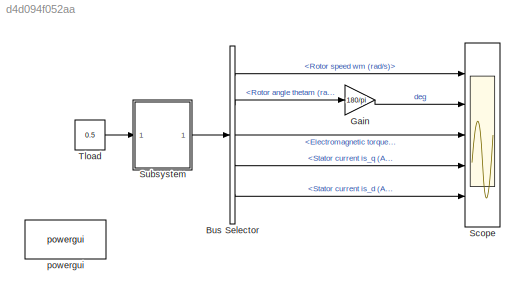
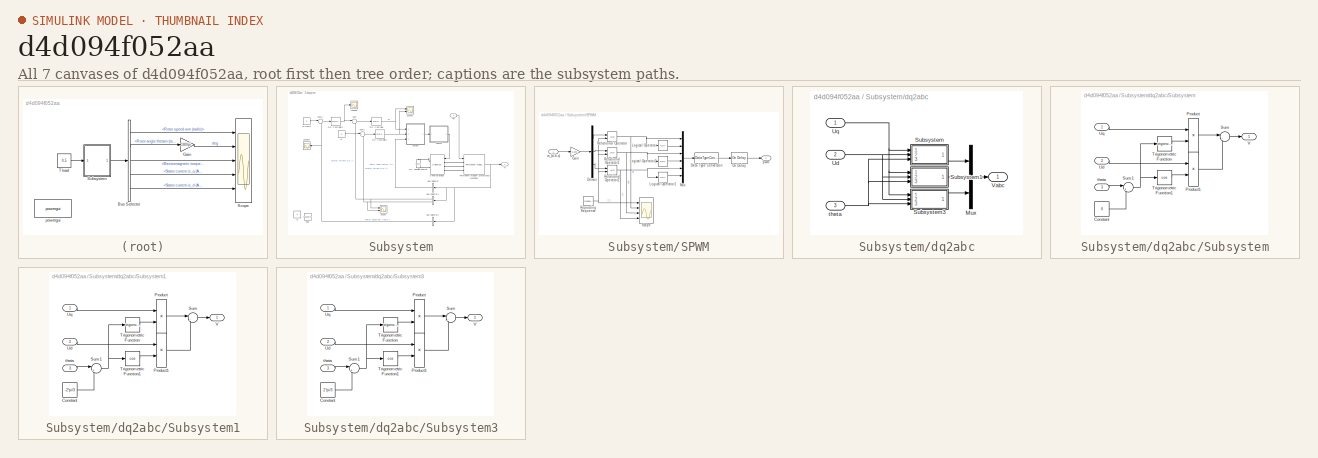
[diagram: thumbnail index - all 7 canvases of the model, root first then tree order]
MODEL slx_d4d094f052aa
KIND model
CONFIG AbsTol = auto
CONFIG EnableMultiTasking = off
CONFIG FixedStep = auto
CONFIG MaxStep = auto
CONFIG MinStep = auto
CONFIG RelTol = 1e-3
CONFIG SampleTimeConstraint = Unconstrained
CONFIG Solver = VariableStepAuto
CONFIG SolverName = VariableStepAuto
CONFIG StartTime = 0.0
CONFIG StopTime = 0.2
BLOCK [BusSelector] Bus Selector
  OutputAsBus = off
  OutputSignals = Rotor speed wm (rad/s),Rotor angle thetam (rad),Electromagnetic torque Te (N*m),Stator current is_q (A),Stator current is_d (A)
  Ports = [1, 5]
BLOCK [Gain] Gain
  Gain = 180/pi
  OutDataTypeStr = Inherit: Inherit via internal rule
  ParamDataTypeStr = Inherit: Inherit via internal rule
  SaturateOnIntegerOverflow = off
BLOCK [Scope] Scope
  Floating = off
  NumInputPorts = 5
  Ports = [5]
  ScopeSpecificationString = Simulink.scopes.TimeScopeBlockCfg('CurrentConfiguration', extmgr.ConfigurationSet(extmgr.Configuration('Core','General UI',true),extmgr.Configuration('Core','Source UI',true),extmgr.Configuration('Sources','WiredSimulink',true,'DataLoggingVariableName','ScopeData1'),extmgr.Configuration('Visuals','Time Domain',true,'SerializedDisplays',{struct('MinYLimReal','-0.64229','MaxYLimReal','5.78062','YLab...<+4273ch>
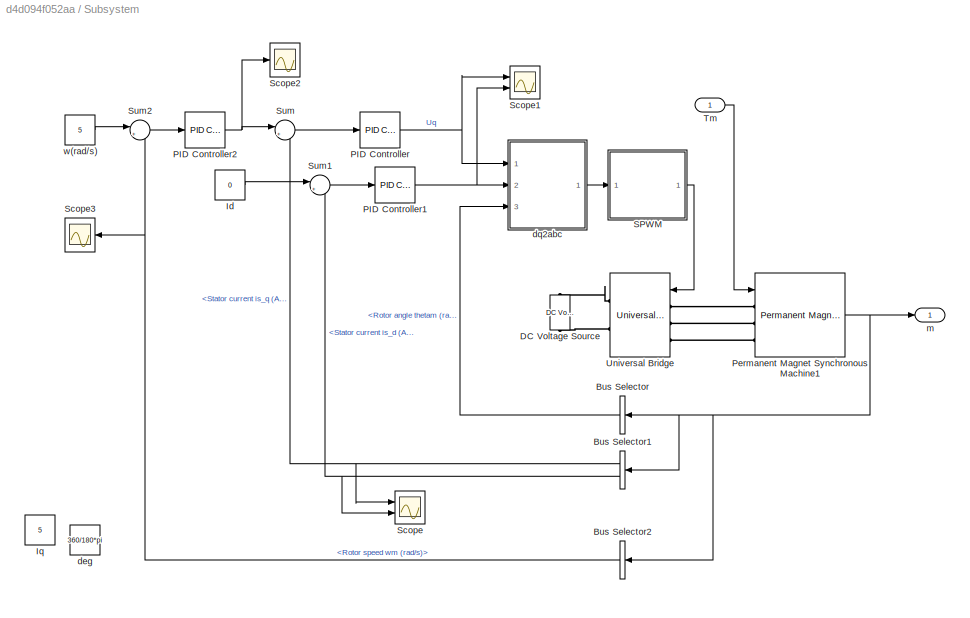
BLOCK [SubSystem] Subsystem
  Ports = [1, 1]
  RequestExecContextInheritance = off
BLOCK [BusSelector] Subsystem/Bus Selector
  OutputAsBus = off
  OutputSignals = Rotor angle thetam (rad)
  Ports = [1, 1]
BLOCK [BusSelector] Subsystem/Bus Selector1
  OutputAsBus = off
  OutputSignals = Stator current is_q (A),Stator current is_d (A)
  Ports = [1, 2]
BLOCK [BusSelector] Subsystem/Bus Selector2
  OutputAsBus = off
  OutputSignals = Rotor speed wm (rad/s)
  Ports = [1, 1]
BLOCK [Reference] Subsystem/DC Voltage Source  REF=powerlib/Electrical
Sources/DC Voltage Source
  Ports = [0, 0, 0, 0, 0, 1, 1]
  SourceBlock = powerlib/Electrical\nSources/DC Voltage Source
  SourceProductBaseCode = PS
  SourceProductName = Simscape Power Systems
  SourceType = DC Voltage Source
BLOCK [Constant] Subsystem/Id
  Value = 0
BLOCK [Constant] Subsystem/Iq
  Value = 5
BLOCK [Reference] Subsystem/PID Controller  REF=simulink/Continuous/PID Controller
  Ports = [1, 1]
  SourceBlock = simulink/Continuous/PID Controller
  SourceProductBaseCode = SL
  SourceProductName = Simulink
  SourceType = PID 1dof
BLOCK [Reference] Subsystem/PID Controller1  REF=simulink/Continuous/PID Controller
  Ports = [1, 1]
  SourceBlock = simulink/Continuous/PID Controller
  SourceProductBaseCode = SL
  SourceProductName = Simulink
  SourceType = PID 1dof
BLOCK [Reference] Subsystem/PID Controller2  REF=simulink/Continuous/PID Controller
  Ports = [1, 1]
  SourceBlock = simulink/Continuous/PID Controller
  SourceProductBaseCode = SL
  SourceProductName = Simulink
  SourceType = PID 1dof
BLOCK [Reference] Subsystem/Permanent Magnet Synchronous Machine1  REF=powerlib/Machines/Permanent Magnet
Synchronous Machine
  Ports = [1, 1, 0, 0, 0, 3]
  SourceBlock = powerlib/Machines/Permanent Magnet\nSynchronous Machine
  SourceProductBaseCode = PS
  SourceProductName = Simscape Power Systems
  SourceType = Permanent Magnet Synchronous Machine
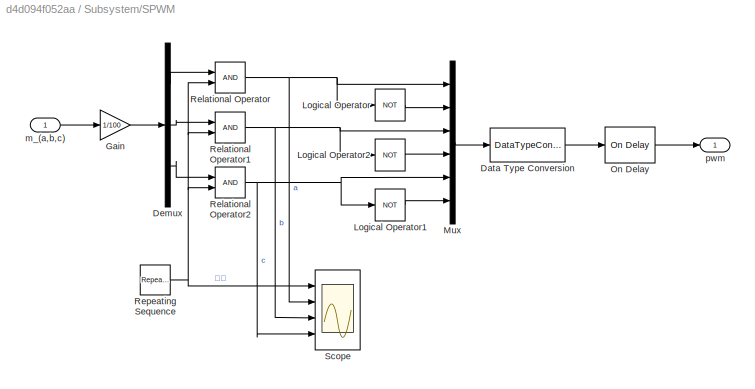
BLOCK [SubSystem] Subsystem/SPWM
  Ports = [1, 1]
  RequestExecContextInheritance = off
BLOCK [DataTypeConversion] Subsystem/SPWM/Data Type Conversion
  RndMeth = Floor
  SaturateOnIntegerOverflow = off
BLOCK [Demux] Subsystem/SPWM/Demux
  DisplayOption = bar
  Outputs = 3
  Ports = [1, 3]
BLOCK [Gain] Subsystem/SPWM/Gain
  Gain = 1/100
  OutDataTypeStr = Inherit: Inherit via internal rule
  ParamDataTypeStr = Inherit: Inherit via internal rule
  SaturateOnIntegerOverflow = off
BLOCK [Logic] Subsystem/SPWM/Logical Operator
  AllPortsSameDT = off
  Operator = NOT
  OutDataTypeStr = boolean
  Ports = [1, 1]
BLOCK [Logic] Subsystem/SPWM/Logical Operator1
  AllPortsSameDT = off
  Operator = NOT
  OutDataTypeStr = boolean
  Ports = [1, 1]
BLOCK [Logic] Subsystem/SPWM/Logical Operator2
  AllPortsSameDT = off
  Operator = NOT
  OutDataTypeStr = boolean
  Ports = [1, 1]
BLOCK [Mux] Subsystem/SPWM/Mux
  DisplayOption = bar
  Inputs = 6
  Ports = [6, 1]
BLOCK [Reference] Subsystem/SPWM/On Delay  REF=powerlib_meascontrol/Logic/On Delay
  Ports = [1, 1]
  SourceBlock = powerlib_meascontrol/Logic/On Delay
  SourceProductBaseCode = PS
  SourceProductName = Simscape Power Systems
  SourceType = On/Off Delay
BLOCK [RelationalOperator] Subsystem/SPWM/Relational Operator
  InputSameDT = off
  OutDataTypeStr = boolean
  Ports = [2, 1]
  RndMeth = Simplest
BLOCK [RelationalOperator] Subsystem/SPWM/Relational Operator1
  InputSameDT = off
  OutDataTypeStr = boolean
  Ports = [2, 1]
  RndMeth = Simplest
BLOCK [RelationalOperator] Subsystem/SPWM/Relational Operator2
  InputSameDT = off
  OutDataTypeStr = boolean
  Ports = [2, 1]
  RndMeth = Simplest
BLOCK [Reference] Subsystem/SPWM/Repeating Sequence  REF=simulink/Sources/Repeating
Sequence
  Ports = [0, 1]
  SourceBlock = simulink/Sources/Repeating\nSequence
  SourceProductBaseCode = SL
  SourceProductName = Simulink
  SourceType = Repeating table
BLOCK [Scope] Subsystem/SPWM/Scope
  Floating = off
  NumInputPorts = 4
  Ports = [4]
  ScopeSpecificationString = Simulink.scopes.TimeScopeBlockCfg('CurrentConfiguration', extmgr.ConfigurationSet(extmgr.Configuration('Core','General UI',true),extmgr.Configuration('Core','Source UI',true),extmgr.Configuration('Sources','WiredSimulink',true,'DataLoggingVariableName','ScopeData1'),extmgr.Configuration('Visuals','Time Domain',true,'SerializedDisplays',{struct('MinYLimReal','0.5','MaxYLimReal','2','YLabelReal','',...<+2700ch>
BLOCK [Inport] Subsystem/SPWM/m_(a,b,c) 
  IconDisplay = Port number
BLOCK [Outport] Subsystem/SPWM/pwm
  IconDisplay = Port number
BLOCK [Scope] Subsystem/Scope
  Floating = off
  NumInputPorts = 2
  Ports = [2]
  ScopeSpecificationString = Simulink.scopes.TimeScopeBlockCfg('CurrentConfiguration', extmgr.ConfigurationSet(extmgr.Configuration('Core','General UI',true),extmgr.Configuration('Core','Source UI',true),extmgr.Configuration('Sources','WiredSimulink',true,'DataLoggingVariableName','ScopeData1'),extmgr.Configuration('Visuals','Time Domain',true,'SerializedDisplays',{struct('MinYLimReal','-9.73687','MaxYLimReal','87.63184','YLa...<+2005ch>
BLOCK [Scope] Subsystem/Scope1
  Floating = off
  NumInputPorts = 2
  Ports = [2]
  ScopeSpecificationString = Simulink.scopes.TimeScopeBlockCfg('CurrentConfiguration', extmgr.ConfigurationSet(extmgr.Configuration('Core','General UI',true),extmgr.Configuration('Core','Source UI',true),extmgr.Configuration('Sources','WiredSimulink',true,'DataLoggingVariableName','ScopeData2'),extmgr.Configuration('Visuals','Time Domain',true,'SerializedDisplays',{struct('MinYLimReal','-56.27312','MaxYLimReal','117.36368','Y...<+2023ch>
BLOCK [Scope] Subsystem/Scope2
  Floating = off
  NumInputPorts = 1
  Ports = [1]
  ScopeSpecificationString = Simulink.scopes.TimeScopeBlockCfg('CurrentConfiguration', extmgr.ConfigurationSet(extmgr.Configuration('Core','General UI',true),extmgr.Configuration('Core','Source UI',true),extmgr.Configuration('Sources','WiredSimulink',true,'DataLoggingVariableName','ScopeData2'),extmgr.Configuration('Visuals','Time Domain',true,'SerializedDisplays',{struct('MinYLimReal','-12.83015','MaxYLimReal','112.53668','Y...<+1507ch>
BLOCK [Scope] Subsystem/Scope3
  Floating = off
  NumInputPorts = 1
  Ports = [1]
  ScopeSpecificationString = Simulink.scopes.TimeScopeBlockCfg('CurrentConfiguration', extmgr.ConfigurationSet(extmgr.Configuration('Core','General UI',true),extmgr.Configuration('Core','Source UI',true),extmgr.Configuration('Sources','WiredSimulink',true,'DataLoggingVariableName','ScopeData3'),extmgr.Configuration('Visuals','Time Domain',true,'SerializedDisplays',{struct('MinYLimReal','-0.62983','MaxYLimReal','5.64145','YLab...<+1462ch>
BLOCK [Sum] Subsystem/Sum
  IconShape = round
  InputSameDT = off
  Inputs = |+-
  OutDataTypeStr = Inherit: Inherit via internal rule
  Ports = [2, 1]
  SaturateOnIntegerOverflow = off
BLOCK [Sum] Subsystem/Sum1
  IconShape = round
  InputSameDT = off
  Inputs = |+-
  OutDataTypeStr = Inherit: Inherit via internal rule
  Ports = [2, 1]
  SaturateOnIntegerOverflow = off
BLOCK [Sum] Subsystem/Sum2
  IconShape = round
  InputSameDT = off
  Inputs = |+-
  OutDataTypeStr = Inherit: Inherit via internal rule
  Ports = [2, 1]
  SaturateOnIntegerOverflow = off
BLOCK [Inport] Subsystem/Tm
  IconDisplay = Port number
BLOCK [Reference] Subsystem/Universal Bridge  REF=powerlib/Power
Electronics/Universal Bridge
  Ports = [1, 0, 0, 0, 0, 3, 2]
  SourceBlock = powerlib/Power\nElectronics/Universal Bridge
  SourceProductBaseCode = PS
  SourceProductName = Simscape Power Systems
  SourceType = Universal Bridge
BLOCK [Constant] Subsystem/deg
  Value = 360/180*pi
BLOCK [SubSystem] Subsystem/dq2abc
  Ports = [3, 1]
  RequestExecContextInheritance = off
BLOCK [Mux] Subsystem/dq2abc/Mux
  DisplayOption = bar
  Inputs = 3
  Ports = [3, 1]
BLOCK [SubSystem] Subsystem/dq2abc/Subsystem
  Ports = [3, 1]
  RequestExecContextInheritance = off
BLOCK [Constant] Subsystem/dq2abc/Subsystem/Constant
  Value = 0
BLOCK [Product] Subsystem/dq2abc/Subsystem/Product
  InputSameDT = off
  OutDataTypeStr = Inherit: Inherit via internal rule
  Ports = [2, 1]
  RndMeth = Floor
  SaturateOnIntegerOverflow = off
BLOCK [Product] Subsystem/dq2abc/Subsystem/Product1
  InputSameDT = off
  OutDataTypeStr = Inherit: Inherit via internal rule
  Ports = [2, 1]
  RndMeth = Floor
  SaturateOnIntegerOverflow = off
BLOCK [Sum] Subsystem/dq2abc/Subsystem/Sum
  IconShape = round
  InputSameDT = off
  Inputs = |-+
  OutDataTypeStr = Inherit: Inherit via internal rule
  Ports = [2, 1]
  SaturateOnIntegerOverflow = off
BLOCK [Sum] Subsystem/dq2abc/Subsystem/Sum1
  IconShape = round
  InputSameDT = off
  Inputs = |++
  OutDataTypeStr = Inherit: Inherit via internal rule
  Ports = [2, 1]
  SaturateOnIntegerOverflow = off
BLOCK [Trigonometry] Subsystem/dq2abc/Subsystem/Trigonometric Function
  Ports = [1, 1]
BLOCK [Trigonometry] Subsystem/dq2abc/Subsystem/Trigonometric Function1
  Operator = cos
  Ports = [1, 1]
BLOCK [Inport] Subsystem/dq2abc/Subsystem/Ud
  IconDisplay = Port number
  Port = 2
BLOCK [Inport] Subsystem/dq2abc/Subsystem/Uq
  IconDisplay = Port number
BLOCK [Outport] Subsystem/dq2abc/Subsystem/V
  IconDisplay = Port number
BLOCK [Inport] Subsystem/dq2abc/Subsystem/theta
  IconDisplay = Port number
  Port = 3
BLOCK [SubSystem] Subsystem/dq2abc/Subsystem1
  Ports = [3, 1]
  RequestExecContextInheritance = off
BLOCK [Constant] Subsystem/dq2abc/Subsystem1/Constant
  Value = -2*pi/3
BLOCK [Product] Subsystem/dq2abc/Subsystem1/Product
  InputSameDT = off
  OutDataTypeStr = Inherit: Inherit via internal rule
  Ports = [2, 1]
  RndMeth = Floor
  SaturateOnIntegerOverflow = off
BLOCK [Product] Subsystem/dq2abc/Subsystem1/Product1
  InputSameDT = off
  OutDataTypeStr = Inherit: Inherit via internal rule
  Ports = [2, 1]
  RndMeth = Floor
  SaturateOnIntegerOverflow = off
BLOCK [Sum] Subsystem/dq2abc/Subsystem1/Sum
  IconShape = round
  InputSameDT = off
  Inputs = |-+
  OutDataTypeStr = Inherit: Inherit via internal rule
  Ports = [2, 1]
  SaturateOnIntegerOverflow = off
BLOCK [Sum] Subsystem/dq2abc/Subsystem1/Sum1
  IconShape = round
  InputSameDT = off
  Inputs = |++
  OutDataTypeStr = Inherit: Inherit via internal rule
  Ports = [2, 1]
  SaturateOnIntegerOverflow = off
BLOCK [Trigonometry] Subsystem/dq2abc/Subsystem1/Trigonometric Function
  Ports = [1, 1]
BLOCK [Trigonometry] Subsystem/dq2abc/Subsystem1/Trigonometric Function1
  Operator = cos
  Ports = [1, 1]
BLOCK [Inport] Subsystem/dq2abc/Subsystem1/Ud
  IconDisplay = Port number
  Port = 2
BLOCK [Inport] Subsystem/dq2abc/Subsystem1/Uq
  IconDisplay = Port number
BLOCK [Outport] Subsystem/dq2abc/Subsystem1/V
  IconDisplay = Port number
BLOCK [Inport] Subsystem/dq2abc/Subsystem1/theta
  IconDisplay = Port number
  Port = 3
BLOCK [SubSystem] Subsystem/dq2abc/Subsystem3
  Ports = [3, 1]
  RequestExecContextInheritance = off
BLOCK [Constant] Subsystem/dq2abc/Subsystem3/Constant
  Value = 2*pi/3
BLOCK [Product] Subsystem/dq2abc/Subsystem3/Product
  InputSameDT = off
  OutDataTypeStr = Inherit: Inherit via internal rule
  Ports = [2, 1]
  RndMeth = Floor
  SaturateOnIntegerOverflow = off
BLOCK [Product] Subsystem/dq2abc/Subsystem3/Product1
  InputSameDT = off
  OutDataTypeStr = Inherit: Inherit via internal rule
  Ports = [2, 1]
  RndMeth = Floor
  SaturateOnIntegerOverflow = off
BLOCK [Sum] Subsystem/dq2abc/Subsystem3/Sum
  IconShape = round
  InputSameDT = off
  Inputs = |-+
  OutDataTypeStr = Inherit: Inherit via internal rule
  Ports = [2, 1]
  SaturateOnIntegerOverflow = off
BLOCK [Sum] Subsystem/dq2abc/Subsystem3/Sum1
  IconShape = round
  InputSameDT = off
  Inputs = |++
  OutDataTypeStr = Inherit: Inherit via internal rule
  Ports = [2, 1]
  SaturateOnIntegerOverflow = off
BLOCK [Trigonometry] Subsystem/dq2abc/Subsystem3/Trigonometric Function
  Ports = [1, 1]
BLOCK [Trigonometry] Subsystem/dq2abc/Subsystem3/Trigonometric Function1
  Operator = cos
  Ports = [1, 1]
BLOCK [Inport] Subsystem/dq2abc/Subsystem3/Ud
  IconDisplay = Port number
  Port = 2
BLOCK [Inport] Subsystem/dq2abc/Subsystem3/Uq
  IconDisplay = Port number
BLOCK [Outport] Subsystem/dq2abc/Subsystem3/V
  IconDisplay = Port number
BLOCK [Inport] Subsystem/dq2abc/Subsystem3/theta
  IconDisplay = Port number
  Port = 3
BLOCK [Inport] Subsystem/dq2abc/Ud
  IconDisplay = Port number
  Port = 2
BLOCK [Inport] Subsystem/dq2abc/Uq
  IconDisplay = Port number
BLOCK [Outport] Subsystem/dq2abc/Vabc
  IconDisplay = Port number
BLOCK [Inport] Subsystem/dq2abc/theta
  IconDisplay = Port number
  Port = 3
BLOCK [Outport] Subsystem/m
  IconDisplay = Port number
BLOCK [Constant] Subsystem/w(rad//s)
  Value = 5
BLOCK [Constant] Tload
  Value = 0.5
BLOCK [Reference] powergui  REF=powerlib/powergui
  Ports = []
  Priority = 1
  SourceBlock = powerlib/powergui
  SourceProductBaseCode = PS
  SourceProductName = Simscape Power Systems
  SourceType = PSB option menu block
LINE Bus Selector:1 -> Scope:1
LINE Bus Selector:2 -> Gain:1
LINE Bus Selector:3 -> Scope:3
LINE Bus Selector:4 -> Scope:4
LINE Bus Selector:5 -> Scope:5
LINE Gain:1 -> Scope:2
NET Subsystem/Bus Selector1:1 -> Subsystem/Scope:1, Subsystem/Sum:2
NET Subsystem/Bus Selector1:2 -> Subsystem/Scope:2, Subsystem/Sum1:2
NET Subsystem/Bus Selector2:1 -> Subsystem/Scope3:1, Subsystem/Sum2:2
LINE Subsystem/Bus Selector:1 -> Subsystem/dq2abc:3
LINE Subsystem/Id:1 -> Subsystem/Sum1:1
NET Subsystem/PID Controller1:1 -> Subsystem/Scope1:2, Subsystem/dq2abc:2
NET Subsystem/PID Controller2:1 -> Subsystem/Scope2:1, Subsystem/Sum:1
NET Subsystem/PID Controller:1 -> Subsystem/Scope1:1, Subsystem/dq2abc:1
NET Subsystem/Permanent Magnet Synchronous Machine1:1 -> Subsystem/Bus Selector1:1, Subsystem/Bus Selector2:1, Subsystem/Bus Selector:1, Subsystem/m:1
LINE Subsystem/SPWM/Data Type Conversion:1 -> Subsystem/SPWM/On Delay:1
LINE Subsystem/SPWM/Demux:1 -> Subsystem/SPWM/Relational Operator:1
LINE Subsystem/SPWM/Demux:2 -> Subsystem/SPWM/Relational Operator1:1
LINE Subsystem/SPWM/Demux:3 -> Subsystem/SPWM/Relational Operator2:1
LINE Subsystem/SPWM/Gain:1 -> Subsystem/SPWM/Demux:1
LINE Subsystem/SPWM/Logical Operator1:1 -> Subsystem/SPWM/Mux:6
LINE Subsystem/SPWM/Logical Operator2:1 -> Subsystem/SPWM/Mux:4
LINE Subsystem/SPWM/Logical Operator:1 -> Subsystem/SPWM/Mux:2
LINE Subsystem/SPWM/Mux:1 -> Subsystem/SPWM/Data Type Conversion:1
LINE Subsystem/SPWM/On Delay:1 -> Subsystem/SPWM/pwm:1
NET Subsystem/SPWM/Relational Operator1:1 -> Subsystem/SPWM/Logical Operator2:1, Subsystem/SPWM/Mux:3, Subsystem/SPWM/Scope:3
NET Subsystem/SPWM/Relational Operator2:1 -> Subsystem/SPWM/Logical Operator1:1, Subsystem/SPWM/Mux:5, Subsystem/SPWM/Scope:4
NET Subsystem/SPWM/Relational Operator:1 -> Subsystem/SPWM/Logical Operator:1, Subsystem/SPWM/Mux:1, Subsystem/SPWM/Scope:2
NET Subsystem/SPWM/Repeating Sequence:1 -> Subsystem/SPWM/Relational Operator1:2, Subsystem/SPWM/Relational Operator2:2, Subsystem/SPWM/Relational Operator:2, Subsystem/SPWM/Scope:1
LINE Subsystem/SPWM/m_(a,b,c) :1 -> Subsystem/SPWM/Gain:1
LINE Subsystem/SPWM:1 -> Subsystem/Universal Bridge:1
LINE Subsystem/Sum1:1 -> Subsystem/PID Controller1:1
LINE Subsystem/Sum2:1 -> Subsystem/PID Controller2:1
LINE Subsystem/Sum:1 -> Subsystem/PID Controller:1
LINE Subsystem/Tm:1 -> Subsystem/Permanent Magnet Synchronous Machine1:1
LINE Subsystem/dq2abc/Mux:1 -> Subsystem/dq2abc/Vabc:1
LINE Subsystem/dq2abc/Subsystem/Constant:1 -> Subsystem/dq2abc/Subsystem/Sum1:2
LINE Subsystem/dq2abc/Subsystem/Product1:1 -> Subsystem/dq2abc/Subsystem/Sum:2
LINE Subsystem/dq2abc/Subsystem/Product:1 -> Subsystem/dq2abc/Subsystem/Sum:1
NET Subsystem/dq2abc/Subsystem/Sum1:1 -> Subsystem/dq2abc/Subsystem/Trigonometric Function1:1, Subsystem/dq2abc/Subsystem/Trigonometric Function:1
LINE Subsystem/dq2abc/Subsystem/Sum:1 -> Subsystem/dq2abc/Subsystem/V:1
LINE Subsystem/dq2abc/Subsystem/Trigonometric Function1:1 -> Subsystem/dq2abc/Subsystem/Product1:2
LINE Subsystem/dq2abc/Subsystem/Trigonometric Function:1 -> Subsystem/dq2abc/Subsystem/Product:2
LINE Subsystem/dq2abc/Subsystem/Ud:1 -> Subsystem/dq2abc/Subsystem/Product1:1
LINE Subsystem/dq2abc/Subsystem/Uq:1 -> Subsystem/dq2abc/Subsystem/Product:1
LINE Subsystem/dq2abc/Subsystem/theta:1 -> Subsystem/dq2abc/Subsystem/Sum1:1
LINE Subsystem/dq2abc/Subsystem1/Constant:1 -> Subsystem/dq2abc/Subsystem1/Sum1:2
LINE Subsystem/dq2abc/Subsystem1/Product1:1 -> Subsystem/dq2abc/Subsystem1/Sum:2
LINE Subsystem/dq2abc/Subsystem1/Product:1 -> Subsystem/dq2abc/Subsystem1/Sum:1
NET Subsystem/dq2abc/Subsystem1/Sum1:1 -> Subsystem/dq2abc/Subsystem1/Trigonometric Function1:1, Subsystem/dq2abc/Subsystem1/Trigonometric Function:1
LINE Subsystem/dq2abc/Subsystem1/Sum:1 -> Subsystem/dq2abc/Subsystem1/V:1
LINE Subsystem/dq2abc/Subsystem1/Trigonometric Function1:1 -> Subsystem/dq2abc/Subsystem1/Product1:2
LINE Subsystem/dq2abc/Subsystem1/Trigonometric Function:1 -> Subsystem/dq2abc/Subsystem1/Product:2
LINE Subsystem/dq2abc/Subsystem1/Ud:1 -> Subsystem/dq2abc/Subsystem1/Product1:1
LINE Subsystem/dq2abc/Subsystem1/Uq:1 -> Subsystem/dq2abc/Subsystem1/Product:1
LINE Subsystem/dq2abc/Subsystem1/theta:1 -> Subsystem/dq2abc/Subsystem1/Sum1:1
LINE Subsystem/dq2abc/Subsystem1:1 -> Subsystem/dq2abc/Mux:2
LINE Subsystem/dq2abc/Subsystem3/Constant:1 -> Subsystem/dq2abc/Subsystem3/Sum1:2
LINE Subsystem/dq2abc/Subsystem3/Product1:1 -> Subsystem/dq2abc/Subsystem3/Sum:2
LINE Subsystem/dq2abc/Subsystem3/Product:1 -> Subsystem/dq2abc/Subsystem3/Sum:1
NET Subsystem/dq2abc/Subsystem3/Sum1:1 -> Subsystem/dq2abc/Subsystem3/Trigonometric Function1:1, Subsystem/dq2abc/Subsystem3/Trigonometric Function:1
LINE Subsystem/dq2abc/Subsystem3/Sum:1 -> Subsystem/dq2abc/Subsystem3/V:1
LINE Subsystem/dq2abc/Subsystem3/Trigonometric Function1:1 -> Subsystem/dq2abc/Subsystem3/Product1:2
LINE Subsystem/dq2abc/Subsystem3/Trigonometric Function:1 -> Subsystem/dq2abc/Subsystem3/Product:2
LINE Subsystem/dq2abc/Subsystem3/Ud:1 -> Subsystem/dq2abc/Subsystem3/Product1:1
LINE Subsystem/dq2abc/Subsystem3/Uq:1 -> Subsystem/dq2abc/Subsystem3/Product:1
LINE Subsystem/dq2abc/Subsystem3/theta:1 -> Subsystem/dq2abc/Subsystem3/Sum1:1
LINE Subsystem/dq2abc/Subsystem3:1 -> Subsystem/dq2abc/Mux:3
LINE Subsystem/dq2abc/Subsystem:1 -> Subsystem/dq2abc/Mux:1
NET Subsystem/dq2abc/Ud:1 -> Subsystem/dq2abc/Subsystem1:2, Subsystem/dq2abc/Subsystem3:2, Subsystem/dq2abc/Subsystem:2
NET Subsystem/dq2abc/Uq:1 -> Subsystem/dq2abc/Subsystem1:1, Subsystem/dq2abc/Subsystem3:1, Subsystem/dq2abc/Subsystem:1
NET Subsystem/dq2abc/theta:1 -> Subsystem/dq2abc/Subsystem1:3, Subsystem/dq2abc/Subsystem3:3, Subsystem/dq2abc/Subsystem:3
LINE Subsystem/dq2abc:1 -> Subsystem/SPWM:1
LINE Subsystem/w(rad//s):1 -> Subsystem/Sum2:1
LINE Subsystem:1 -> Bus Selector:1
LINE Tload:1 -> Subsystem:1
PLINE Subsystem/DC Voltage Source:LConn1 -- Subsystem/Universal Bridge:RConn2
PLINE Subsystem/DC Voltage Source:RConn1 -- Subsystem/Universal Bridge:RConn1
PLINE Subsystem/Permanent Magnet Synchronous Machine1:LConn1 -- Subsystem/Universal Bridge:LConn1
PLINE Subsystem/Permanent Magnet Synchronous Machine1:LConn2 -- Subsystem/Universal Bridge:LConn2
PLINE Subsystem/Permanent Magnet Synchronous Machine1:LConn3 -- Subsystem/Universal Bridge:LConn3
note: NET lines group one-source signal fan-out (src -> all destinations, sorted); 1:1 wires keep LINE
